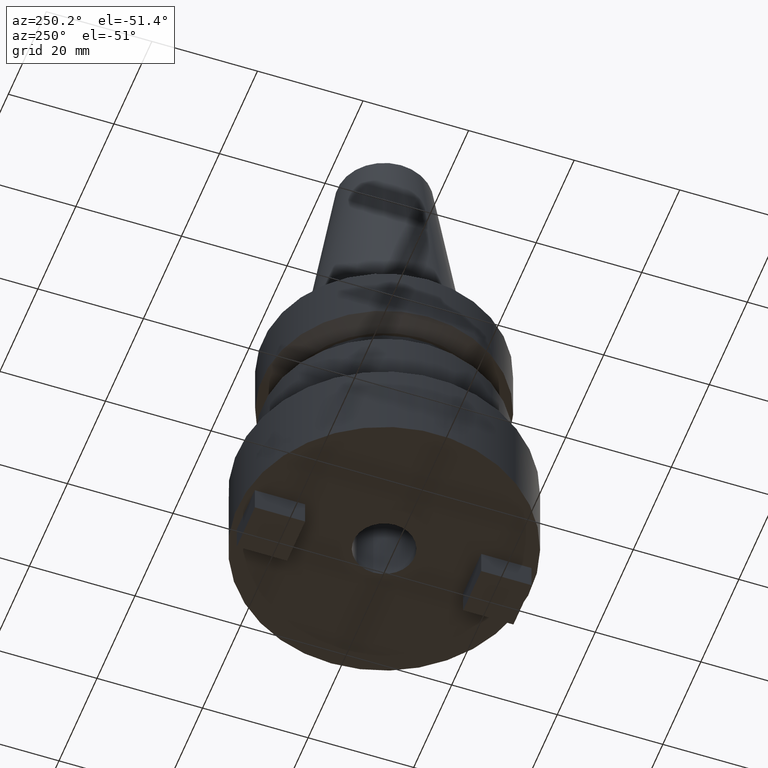
[diagram: clean part render]
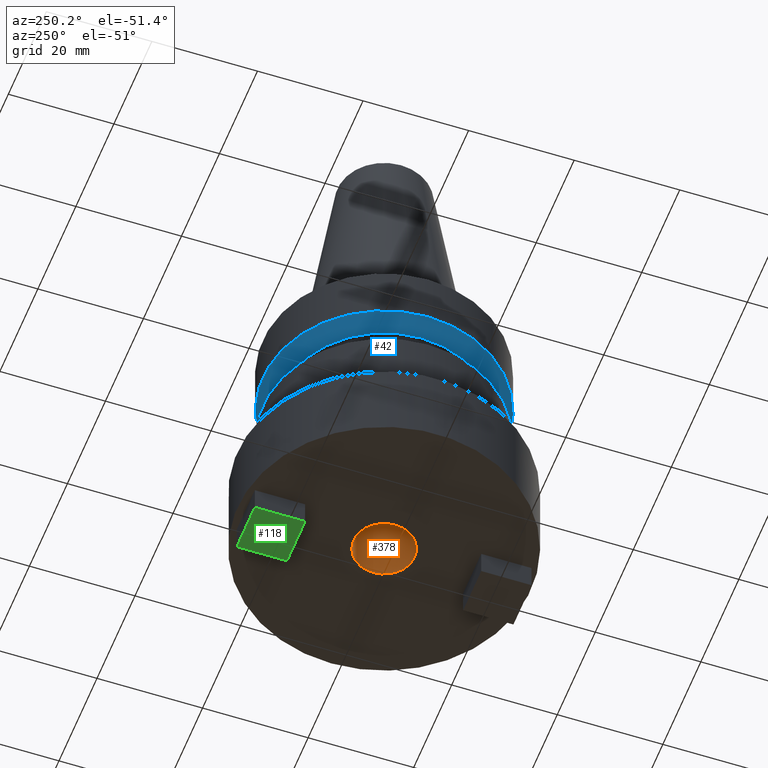
[diagram: same view with three faces highlighted in distinct colors, each labeled with its STEP entity id]
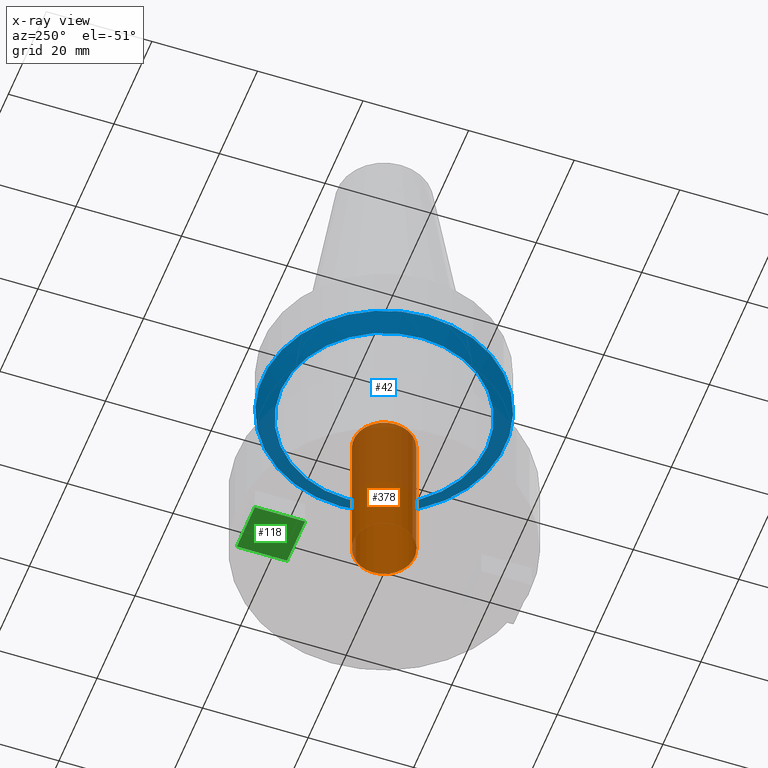
[diagram: x-ray of the same camera — body ghosted, the three highlighted faces saturated]
A machine part, auxiliary view with three faces highlighted in distinct colors.
The next image is the same camera in x-ray (body ghosted, the three faces saturated) — at least one of them is partly hidden behind the body in this view.
Their STEP definitions:

[orange] entity #378 — the highlighted cylindrical surface (bore or boss wall) has radius 5.765 mm, axis along (-0, -0, 1).
#38 = ORIENTED_EDGE ( 'NONE', *, *, #235, .T. ) ;
#54 = CIRCLE ( 'NONE', #310, 5.764999999999999680 ) ;
#101 = ORIENTED_EDGE ( 'NONE', *, *, #648, .F. ) ;
#119 = AXIS2_PLACEMENT_3D ( 'NONE', #161, #372, #412 ) ;
#137 = VERTEX_POINT ( 'NONE', #149 ) ;
#149 = CARTESIAN_POINT ( 'NONE',  ( 5.764999999999999680, 0.000000000000000000, -50.79999999999999716 ) ) ;
#161 = CARTESIAN_POINT ( 'NONE',  ( 0.000000000000000000, 0.000000000000000000, 0.000000000000000000 ) ) ;
#195 = CARTESIAN_POINT ( 'NONE',  ( 0.000000000000000000, 0.000000000000000000, -22.00000000000000000 ) ) ;
#211 = FACE_OUTER_BOUND ( 'NONE', #365, .T. ) ;
#235 = EDGE_CURVE ( 'NONE', #407, #407, #367, .T. ) ;
#240 = DIRECTION ( 'NONE',  ( 1.000000000000000000, 0.000000000000000000, 0.000000000000000000 ) ) ;
#260 = CARTESIAN_POINT ( 'NONE',  ( 5.764999999999997904, 0.000000000000000000, -22.00000000000000000 ) ) ;
#310 = AXIS2_PLACEMENT_3D ( 'NONE', #376, #599, #381 ) ;
#365 = EDGE_LOOP ( 'NONE', ( #38 ) ) ;
#367 = CIRCLE ( 'NONE', #589, 5.764999999999997904 ) ;
#372 = DIRECTION ( 'NONE',  ( -0.000000000000000000, -0.000000000000000000, 1.000000000000000000 ) ) ;
#376 = CARTESIAN_POINT ( 'NONE',  ( 0.000000000000000000, 0.000000000000000000, -50.79999999999999716 ) ) ;
#378 = ADVANCED_FACE ( 'NONE', ( #474, #211 ), #632, .F. ) ;
#381 = DIRECTION ( 'NONE',  ( 1.000000000000000000, 0.000000000000000000, 0.000000000000000000 ) ) ;
#407 = VERTEX_POINT ( 'NONE', #260 ) ;
#412 = DIRECTION ( 'NONE',  ( 1.000000000000000000, 0.000000000000000000, 0.000000000000000000 ) ) ;
#433 = DIRECTION ( 'NONE',  ( -0.000000000000000000, -0.000000000000000000, 1.000000000000000000 ) ) ;
#474 = FACE_OUTER_BOUND ( 'NONE', #563, .T. ) ;
#563 = EDGE_LOOP ( 'NONE', ( #101 ) ) ;
#589 = AXIS2_PLACEMENT_3D ( 'NONE', #195, #433, #240 ) ;
#599 = DIRECTION ( 'NONE',  ( -0.000000000000000000, -0.000000000000000000, 1.000000000000000000 ) ) ;
#632 = CYLINDRICAL_SURFACE ( 'NONE', #119, 5.764999999999997904 ) ;
#648 = EDGE_CURVE ( 'NONE', #137, #137, #54, .T. ) ;

[blue] entity #42 — the highlighted conical surface has half-angle 60 deg.
#11 = DIRECTION ( 'NONE',  ( -0.000000000000000000, -0.000000000000000000, 1.000000000000000000 ) ) ;
#35 = AXIS2_PLACEMENT_3D ( 'NONE', #634, #167, #62 ) ;
#42 = ADVANCED_FACE ( 'NONE', ( #67, #638 ), #656, .T. ) ;
#62 = DIRECTION ( 'NONE',  ( 1.000000000000000000, 0.000000000000000000, 0.000000000000000000 ) ) ;
#65 = CARTESIAN_POINT ( 'NONE',  ( 0.000000000000000000, 0.000000000000000000, -13.60014200631680303 ) ) ;
#67 = FACE_OUTER_BOUND ( 'NONE', #511, .T. ) ;
#83 = EDGE_LOOP ( 'NONE', ( #145 ) ) ;
#145 = ORIENTED_EDGE ( 'NONE', *, *, #609, .T. ) ;
#153 = CIRCLE ( 'NONE', #35, 23.00000000000000355 ) ;
#162 = CIRCLE ( 'NONE', #646, 19.53589838486230690 ) ;
#167 = DIRECTION ( 'NONE',  ( -0.000000000000000000, -0.000000000000000000, 1.000000000000000000 ) ) ;
#254 = VERTEX_POINT ( 'NONE', #665 ) ;
#273 = DIRECTION ( 'NONE',  ( 1.000000000000000000, 0.000000000000000000, 0.000000000000000000 ) ) ;
#339 = CARTESIAN_POINT ( 'NONE',  ( 0.000000000000000000, 0.000000000000000000, -13.60014200631680303 ) ) ;
#345 = CARTESIAN_POINT ( 'NONE',  ( 23.00000000000000355, 0.000000000000000000, -11.60014200631680126 ) ) ;
#352 = EDGE_CURVE ( 'NONE', #404, #404, #153, .T. ) ;
#404 = VERTEX_POINT ( 'NONE', #345 ) ;
#427 = AXIS2_PLACEMENT_3D ( 'NONE', #65, #11, #273 ) ;
#434 = DIRECTION ( 'NONE',  ( 1.000000000000000000, 0.000000000000000000, 0.000000000000000000 ) ) ;
#467 = ORIENTED_EDGE ( 'NONE', *, *, #352, .F. ) ;
#490 = DIRECTION ( 'NONE',  ( -0.000000000000000000, -0.000000000000000000, 1.000000000000000000 ) ) ;
#511 = EDGE_LOOP ( 'NONE', ( #467 ) ) ;
#609 = EDGE_CURVE ( 'NONE', #254, #254, #162, .T. ) ;
#634 = CARTESIAN_POINT ( 'NONE',  ( 0.000000000000000000, 0.000000000000000000, -11.60014200631680126 ) ) ;
#638 = FACE_BOUND ( 'NONE', #83, .T. ) ;
#646 = AXIS2_PLACEMENT_3D ( 'NONE', #339, #490, #434 ) ;
#656 = CONICAL_SURFACE ( 'NONE', #427, 19.53589838486230690, 1.047197551196589860 ) ;
#665 = CARTESIAN_POINT ( 'NONE',  ( 19.53589838486230690, 0.000000000000000000, -13.60014200631680303 ) ) ;

[green] entity #118 — the highlighted planar face has unit normal (0, 0, -1).
#5 = ORIENTED_EDGE ( 'NONE', *, *, #506, .F. ) ;
#26 = CARTESIAN_POINT ( 'NONE',  ( -4.765000000000005009, 4.336808689942022666E-16, -55.70000000000000284 ) ) ;
#32 = DIRECTION ( 'NONE',  ( -1.000000000000000000, 0.000000000000000000, -0.000000000000000000 ) ) ;
#34 = EDGE_LOOP ( 'NONE', ( #266, #313, #5, #155 ) ) ;
#64 = VECTOR ( 'NONE', #183, 1000.000000000000000 ) ;
#111 = EDGE_CURVE ( 'NONE', #263, #593, #373, .T. ) ;
#118 = ADVANCED_FACE ( 'NONE', ( #193 ), #386, .T. ) ;
#120 = DIRECTION ( 'NONE',  ( -1.000000000000000000, 3.640552940140205062E-16, 0.000000000000000000 ) ) ;
#121 = CARTESIAN_POINT ( 'NONE',  ( 4.764999999999997904, 26.21000000000000085, -55.70000000000000284 ) ) ;
#132 = CARTESIAN_POINT ( 'NONE',  ( 9.541889256107473405E-15, 26.21000000000000085, -55.70000000000000284 ) ) ;
#135 = CARTESIAN_POINT ( 'NONE',  ( 0.000000000000000000, 0.000000000000000000, -55.70000000000000284 ) ) ;
#155 = ORIENTED_EDGE ( 'NONE', *, *, #268, .T. ) ;
#183 = DIRECTION ( 'NONE',  ( -4.550691175175254109E-16, -1.000000000000000000, 0.000000000000000000 ) ) ;
#193 = FACE_OUTER_BOUND ( 'NONE', #34, .T. ) ;
#249 = CARTESIAN_POINT ( 'NONE',  ( 4.764999999999985469, -2.168404344971001768E-15, -55.70000000000000284 ) ) ;
#263 = VERTEX_POINT ( 'NONE', #436 ) ;
#266 = ORIENTED_EDGE ( 'NONE', *, *, #111, .T. ) ;
#268 = EDGE_CURVE ( 'NONE', #611, #263, #655, .T. ) ;
#313 = ORIENTED_EDGE ( 'NONE', *, *, #575, .F. ) ;
#329 = LINE ( 'NONE', #132, #501 ) ;
#356 = VECTOR ( 'NONE', #120, 1000.000000000000000 ) ;
#373 = LINE ( 'NONE', #588, #356 ) ;
#386 = PLANE ( 'NONE',  #570 ) ;
#436 = CARTESIAN_POINT ( 'NONE',  ( 4.764999999999993463, 16.67999999999999972, -55.70000000000000284 ) ) ;
#439 = DIRECTION ( 'NONE',  ( -1.000000000000000000, 3.640552940140203583E-16, 0.000000000000000000 ) ) ;
#479 = CARTESIAN_POINT ( 'NONE',  ( -4.765000000000002345, 26.21000000000000441, -55.70000000000000284 ) ) ;
#481 = VERTEX_POINT ( 'NONE', #479 ) ;
#497 = DIRECTION ( 'NONE',  ( 0.000000000000000000, 0.000000000000000000, -1.000000000000000000 ) ) ;
#501 = VECTOR ( 'NONE', #439, 1000.000000000000000 ) ;
#506 = EDGE_CURVE ( 'NONE', #611, #481, #329, .T. ) ;
#541 = LINE ( 'NONE', #26, #635 ) ;
#547 = CARTESIAN_POINT ( 'NONE',  ( -4.765000000000003233, 16.68000000000000327, -55.70000000000000284 ) ) ;
#570 = AXIS2_PLACEMENT_3D ( 'NONE', #135, #497, #32 ) ;
#575 = EDGE_CURVE ( 'NONE', #481, #593, #541, .T. ) ;
#588 = CARTESIAN_POINT ( 'NONE',  ( 6.072442304153862371E-15, 16.67999999999999972, -55.70000000000000284 ) ) ;
#593 = VERTEX_POINT ( 'NONE', #547 ) ;
#611 = VERTEX_POINT ( 'NONE', #121 ) ;
#635 = VECTOR ( 'NONE', #659, 1000.000000000000000 ) ;
#655 = LINE ( 'NONE', #249, #64 ) ;
#659 = DIRECTION ( 'NONE',  ( -9.101382350350508958E-17, -1.000000000000000000, 0.000000000000000000 ) ) ;